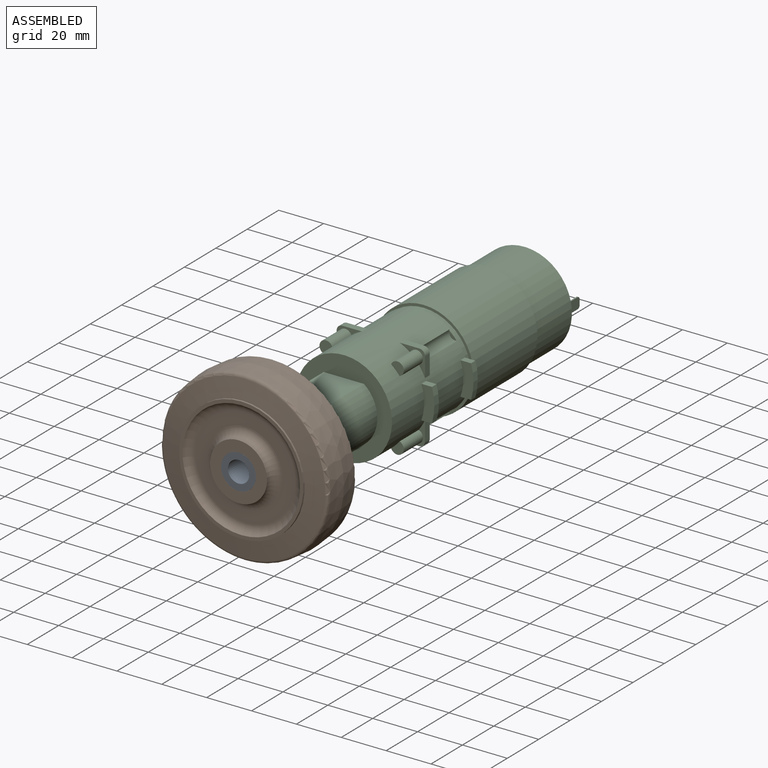
[diagram: assembled view]
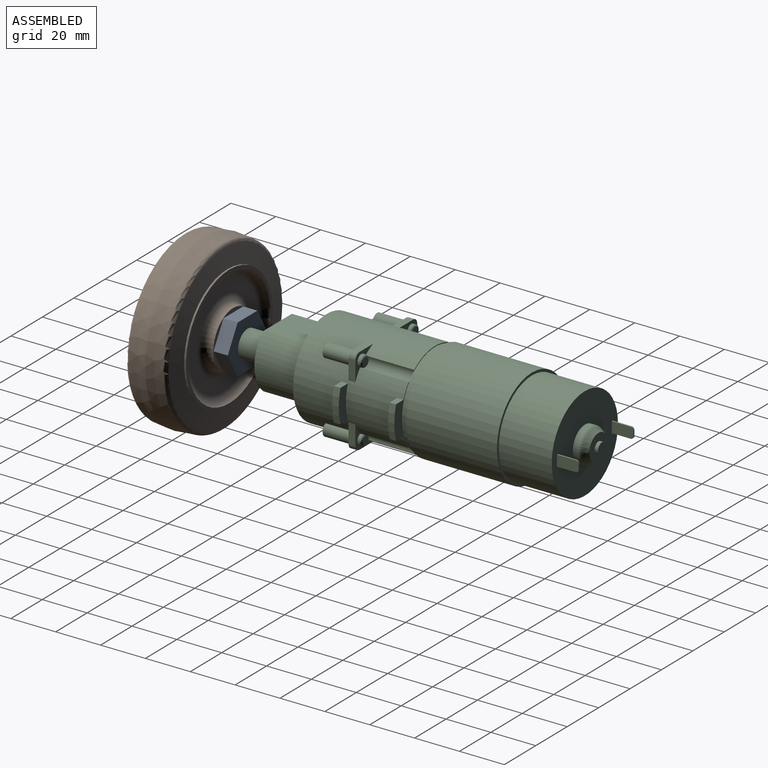
[diagram: assembled view, second angle]
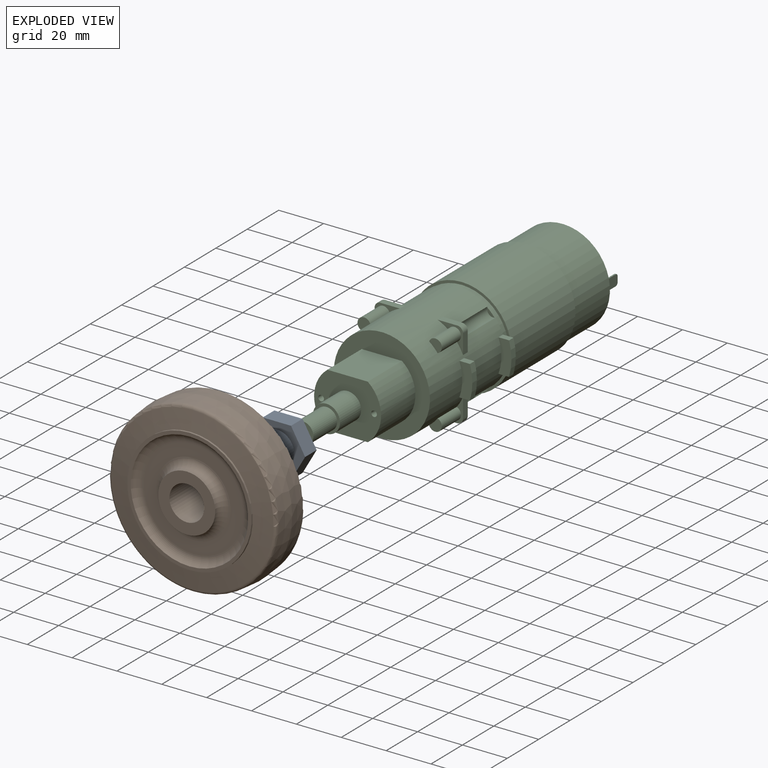
[diagram: exploded view]
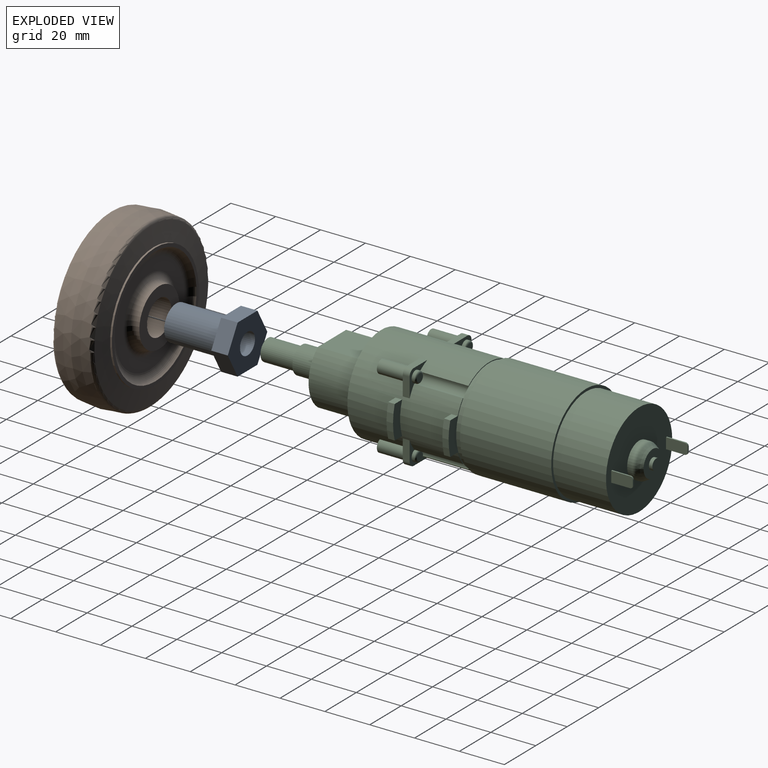
[diagram: exploded view, second angle]
ASSEMBLY  parts=3 mates=2
PART A: 11 faces, bbox 25.2x21.8x31.8 mm
  f0: cylinder r=4.76mm len=31.75mm, axis (0,0,-1), area 950.1mm2, adj f2,f4
  f1: cylinder r=7.74mm len=24.38mm, axis (0,0,-1), area 1185.7mm2, adj f2,f3
  f2: plane 15.48x15.48mm, normal (0,0,1), area 116.9mm2, adj f0,f1
  f3: plane 25.17x21.8mm, normal (0,0,1), area 223.2mm2, adj f1,f5,f6,f7,f8,f9,f10
  f4: plane 25.17x21.8mm, normal (0,0,-1), area 340.2mm2, adj f0,f5,f6,f7,f8,f9,f10
  f5: plane 12.58x7.37mm, normal (0,-1,0), area 92.7mm2, adj f3,f4,f6,f10
  f6: plane 10.9x7.37mm, normal (0.87,-0.5,0), area 92.7mm2, adj f3,f4,f5,f7
  f7: plane 10.9x7.37mm, normal (0.87,0.5,0), area 92.7mm2, adj f3,f4,f6,f8
  f8: plane 12.58x7.37mm, normal (0,1,0), area 92.7mm2, adj f3,f4,f7,f9
  f9: plane 10.9x7.37mm, normal (-0.87,0.5,0), area 92.7mm2, adj f3,f4,f8,f10
  f10: plane 10.9x7.37mm, normal (-0.87,-0.5,0), area 92.7mm2, adj f3,f4,f5,f9
PART B: 21 faces, bbox 81x81x27.6 mm
  f0: cone r=27.69mm half-angle=82.5deg, axis (0,0,-1), area 1702.9mm2, adj f1,f20
  f1: torus R=35.91mm, axis (0,0,1), area 478.3mm2, adj f0,f2
  f2: cone r=37.43mm half-angle=5deg, axis (0,0,-1), area 1827.3mm2, adj f1,f3
  f3: cone r=38.1mm half-angle=5deg, axis (0,0,1), area 1827.3mm2, adj f2,f4
  f4: torus R=35.91mm, axis (0,0,1), area 478.3mm2, adj f3,f5
  f5: cone r=36.11mm half-angle=82.5deg, axis (0,0,1), area 1702.9mm2, adj f4,f6
  f6: cylinder r=27.69mm len=55.37mm, axis (0,0,1), area 141.4mm2, adj f5,f7
  f7: plane 55.37x55.37mm, normal (0,0,-1), area 254.4mm2, adj f6,f8
  f8: torus R=22.23mm, axis (0,0,1), area 769.3mm2, adj f7,f9
  f9: plane 44.45x44.45mm, normal (0,0,-1), area 695.5mm2, adj f8,f10
  f10: torus R=16.51mm, axis (0,0,1), area 529.6mm2, adj f9,f11
  f11: cylinder r=12.7mm len=25.4mm, axis (0,0,1), area 40.5mm2, adj f10,f12
  f12: plane 25.4x25.4mm, normal (0,0,-1), area 318.2mm2, adj f11,f13
  f13: cylinder r=7.75mm len=25.4mm, axis (0,0,1), area 1236.4mm2, adj f12,f14
  f14: plane 25.4x25.4mm, normal (0,0,1), area 318.2mm2, adj f13,f15
  f15: cylinder r=12.7mm len=25.4mm, axis (0,0,1), area 40.5mm2, adj f14,f16
  f16: torus R=16.51mm, axis (0,0,1), area 529.6mm2, adj f15,f17
  f17: plane 44.45x44.45mm, normal (0,0,1), area 695.5mm2, adj f16,f18
  f18: torus R=22.23mm, axis (0,0,1), area 769.3mm2, adj f17,f19
  f19: plane 55.37x55.37mm, normal (0,0,1), area 254.4mm2, adj f18,f20
  f20: cylinder r=27.69mm len=55.37mm, axis (0,0,1), area 141.4mm2, adj f0,f19
PART C: 114 faces, bbox 51.8x175.1x44.1 mm
  f0: plane 42.16x42.16mm, normal (0,1,0), area 1207.7mm2, adj f65,f71,f96,f97,f98,f99,f101,f102
  f1: plane 11.23x11.23mm, normal (0,1,0), area 31.5mm2, adj f7,f30,f31,f32,f82,f90
  f2: plane 11.23x11.23mm, normal (0,1,0), area 31.5mm2, adj f7,f27,f28,f29,f80,f88
  f3: plane 11.23x11.23mm, normal (0,1,0), area 31.5mm2, adj f7,f36,f37,f38,f78,f86
  f4: plane 11.23x11.23mm, normal (0,1,0), area 31.5mm2, adj f7,f33,f34,f35,f76,f84
  f5: plane 26.5x4.94mm, normal (0,1,0), area 9.8mm2, adj f7,f65,f80,f82
  f6: plane 26.5x9.43mm, normal (0,1,0), area 76.9mm2, adj f7,f57,f59,f60,f65,f76,f82
  f7: cylinder r=21.42mm len=48.26mm, axis (0,-1,0), area 5424.3mm2, adj f1,f2,f3,f4,f5,f6,f8,f9
  f8: plane 26.5x9.43mm, normal (0,1,0), area 76.9mm2, adj f7,f62,f63,f64,f65,f78,f80
  f9: plane 26.5x4.94mm, normal (0,1,0), area 9.8mm2, adj f7,f65,f76,f78
  f10: plane 11.72x11.72mm, normal (0,1,0), area 88.6mm2, adj f72,f74
  f11: plane 11.23x11.23mm, normal (0,-1,0), area 25.8mm2, adj f7,f27,f28,f29,f46
  f12: plane 11.23x11.23mm, normal (0,-1,0), area 25.8mm2, adj f7,f33,f34,f35,f44
  f13: plane 11.23x11.23mm, normal (0,-1,0), area 25.8mm2, adj f7,f36,f37,f38,f42
  f14: plane 11.23x11.23mm, normal (0,-1,0), area 25.8mm2, adj f7,f30,f31,f32,f40
  f15: plane 29.92x24.39mm, normal (0,-1,0), area 515.7mm2, adj f16,f17,f18,f19,f20,f111,f113
  f16: cylinder r=6.03mm len=13.46mm, axis (0,-1,0), area 510.3mm2, adj f15,f22
  f17: cylinder r=15.49mm len=24.38mm, axis (0,-1,0), area 613.1mm2, adj f15,f18,f20,f21
  f18: plane 21.84x17.98mm, normal (0,0,-1), area 392.8mm2, adj f15,f17,f19,f21
  f19: cylinder r=15.49mm len=24.38mm, axis (0,-1,0), area 613.1mm2, adj f15,f18,f20,f21
  f20: plane 21.84x17.98mm, normal (0,0,1), area 392.8mm2, adj f15,f17,f19,f21
  f21: plane 42.85x42.85mm, normal (0,-1,0), area 801.9mm2, adj f7,f17,f18,f19,f20
  f22: plane 12.07x12.07mm, normal (0,-1,0), area 43.1mm2, adj f16,f23
  f23: cylinder r=4.76mm len=15.11mm, axis (0,1,0), area 452.2mm2, adj f22,f24
  f24: plane 9.53x9.53mm, normal (0,-1,0), area 54.8mm2, adj f23,f25
  f25: cylinder r=2.29mm len=21.59mm, axis (0,-1,0), area 310.1mm2, adj f24,f26
  f26: plane 4.57x4.57mm, normal (0,-1,0), area 16.4mm2, adj f25
  f27: cylinder r=2.54mm len=3.05mm, axis (0,-1,0), area 12.2mm2, adj f2,f11,f28,f29
  f28: plane 8.69x3.05mm, normal (0,0,-1), area 26.5mm2, adj f2,f7,f11,f27
  f29: plane 8.69x3.05mm, normal (1,0,0), area 26.5mm2, adj f2,f7,f11,f27
  f30: cylinder r=2.54mm len=3.05mm, axis (0,-1,0), area 12.2mm2, adj f1,f14,f31,f32
  f31: plane 8.69x3.05mm, normal (-1,0,0), area 26.5mm2, adj f1,f7,f14,f30
  f32: plane 8.69x3.05mm, normal (0,0,-1), area 26.5mm2, adj f1,f7,f14,f30
  f33: cylinder r=2.54mm len=3.05mm, axis (0,-1,0), area 12.2mm2, adj f4,f12,f34,f35
  f34: plane 8.69x3.05mm, normal (-1,0,0), area 26.5mm2, adj f4,f7,f12,f33
  f35: plane 8.69x3.05mm, normal (0,0,1), area 26.5mm2, adj f4,f7,f12,f33
  f36: plane 8.69x3.05mm, normal (0,0,1), area 26.5mm2, adj f3,f7,f13,f38
  f37: plane 8.69x3.05mm, normal (1,0,0), area 26.5mm2, adj f3,f7,f13,f38
  f38: cylinder r=2.54mm len=3.05mm, axis (0,-1,0), area 12.2mm2, adj f3,f13,f36,f37
  f39: plane 5.65x5.65mm, normal (0,-1,0), area 19.6mm2, adj f7,f40
  f40: cylinder r=2.92mm len=12.19mm, axis (0,1,0), area 141.8mm2, adj f7,f14,f39
  f41: plane 5.65x5.65mm, normal (0,-1,0), area 19.6mm2, adj f7,f42
  f42: cylinder r=2.92mm len=12.19mm, axis (0,1,0), area 141.8mm2, adj f7,f13,f41
  f43: plane 5.65x5.65mm, normal (0,-1,0), area 19.6mm2, adj f7,f44
  f44: cylinder r=2.92mm len=12.19mm, axis (0,1,0), area 141.8mm2, adj f7,f12,f43
  f45: plane 5.65x5.65mm, normal (0,-1,0), area 19.6mm2, adj f7,f46
  f46: cylinder r=2.92mm len=12.19mm, axis (0,1,0), area 141.8mm2, adj f7,f11,f45
  f47: cylinder r=25.91mm len=14.73mm, axis (0,1,0), area 43.6mm2, adj f48,f49,f50,f51
  f48: plane 14.73x5.79mm, normal (0,-1,0), area 67.2mm2, adj f7,f47,f50,f51
  f49: plane 14.73x5.79mm, normal (0,1,0), area 67.2mm2, adj f7,f47,f50,f51
  f50: plane 4.72x2.92mm, normal (0,0,1), area 13.8mm2, adj f7,f47,f48,f49
  f51: plane 4.72x2.92mm, normal (0,0,-1), area 13.8mm2, adj f7,f47,f48,f49
  f52: plane 4.72x2.92mm, normal (0,0,-1), area 13.8mm2, adj f7,f54,f55,f56
  f53: plane 4.72x2.92mm, normal (0,0,1), area 13.8mm2, adj f7,f54,f55,f56
  f54: plane 14.73x5.79mm, normal (0,-1,0), area 67.2mm2, adj f7,f52,f53,f56
  f55: plane 14.73x5.79mm, normal (0,1,0), area 67.2mm2, adj f7,f52,f53,f56
  f56: cylinder r=25.91mm len=14.73mm, axis (0,1,0), area 43.6mm2, adj f52,f53,f54,f55
  f57: cylinder r=25.91mm len=14.73mm, axis (0,1,0), area 41.7mm2, adj f6,f58,f59,f60
  f58: plane 14.73x5.79mm, normal (0,-1,0), area 67.2mm2, adj f7,f57,f59,f60
  f59: plane 4.72x2.79mm, normal (0,0,-1), area 13.2mm2, adj f6,f7,f57,f58
  f60: plane 4.72x2.79mm, normal (0,0,1), area 13.2mm2, adj f6,f7,f57,f58
  f61: plane 14.73x5.79mm, normal (0,-1,0), area 67.2mm2, adj f7,f62,f63,f64
  f62: plane 4.72x2.79mm, normal (0,0,1), area 13.2mm2, adj f7,f8,f61,f64
  f63: plane 4.72x2.79mm, normal (0,0,-1), area 13.2mm2, adj f7,f8,f61,f64
  f64: cylinder r=25.91mm len=14.73mm, axis (0,1,0), area 41.7mm2, adj f8,f61,f62,f63
  f65: cylinder r=21.08mm len=66.8mm, axis (0,-1,0), area 3776.9mm2, adj f0,f5,f6,f8,f9,f66,f67,f68
  f66: plane 40.64x1.16mm, normal (1,0,0), area 47.2mm2, adj f65,f68,f69,f70
  f67: plane 40.64x1.16mm, normal (-1,0,0), area 47.2mm2, adj f65,f68,f69,f70
  f68: plane 44.45x44.12mm, normal (0,1,0), area 146.8mm2, adj f65,f66,f67,f70
  f69: plane 44.45x44.12mm, normal (0,-1,0), area 146.8mm2, adj f65,f66,f67,f70
  f70: cylinder r=22.23mm len=44.45mm, axis (0,-1,0), area 5363.9mm2, adj f66,f67,f68,f69
  f71: cylinder r=7.62mm len=15.24mm, axis (0,-1,0), area 113.3mm2, adj f0,f73
  f72: cone r=5.86mm half-angle=30deg, axis (0,-1,0), area 117.2mm2, adj f10,f73
  f73: torus R=5.08mm, axis (0,1,0), area 62.7mm2, adj f71,f72
  f74: cylinder r=2.48mm len=4.95mm, axis (0,-1,0), area 23.7mm2, adj f10,f75
  f75: plane 4.95x4.95mm, normal (0,1,0), area 19.3mm2, adj f74
  f76: cylinder r=2.79mm len=21.72mm, axis (0,-1,0), area 137.9mm2, adj f4,f6,f7,f9,f77
  f77: plane 3.4x3.4mm, normal (0,-1,0), area 4.7mm2, adj f65,f76
  f78: cylinder r=2.79mm len=21.72mm, axis (0,-1,0), area 137.9mm2, adj f3,f7,f8,f9,f79
  f79: plane 3.4x3.4mm, normal (0,-1,0), area 4.7mm2, adj f65,f78
  f80: cylinder r=2.79mm len=21.72mm, axis (0,-1,0), area 137.9mm2, adj f2,f5,f7,f8,f81
  f81: plane 3.4x3.4mm, normal (0,-1,0), area 4.7mm2, adj f65,f80
  f82: cylinder r=2.79mm len=21.72mm, axis (0,-1,0), area 137.9mm2, adj f1,f5,f6,f7,f83
  f83: plane 3.4x3.4mm, normal (0,-1,0), area 4.7mm2, adj f65,f82
  f84: cylinder r=2.54mm len=5.08mm, axis (0,-1,0), area 18.2mm2, adj f4,f95
  f85: plane 3.56x3.56mm, normal (0,1,0), area 9.9mm2, adj f95
  f86: cylinder r=2.54mm len=5.08mm, axis (0,-1,0), area 18.2mm2, adj f3,f93
  f87: plane 3.56x3.56mm, normal (0,1,0), area 9.9mm2, adj f93
  f88: cylinder r=2.54mm len=5.08mm, axis (0,-1,0), area 18.2mm2, adj f2,f92
  f89: plane 3.56x3.56mm, normal (0,1,0), area 9.9mm2, adj f92
  f90: cylinder r=2.54mm len=5.08mm, axis (0,-1,0), area 18.2mm2, adj f1,f94
  f91: plane 3.56x3.56mm, normal (0,1,0), area 9.9mm2, adj f94
  f92: torus R=1.78mm, axis (0,1,0), area 17mm2, adj f88,f89
  f93: torus R=1.78mm, axis (0,1,0), area 17mm2, adj f86,f87
  f94: torus R=1.78mm, axis (0,1,0), area 17mm2, adj f90,f91
  f95: torus R=1.78mm, axis (0,1,0), area 17mm2, adj f84,f85
  f96: plane 9.65x4.83mm, normal (1,0,0), area 45.9mm2, adj f0,f97,f99,f100,f106,f107
  f97: plane 8.38x0.64mm, normal (0,0,-1), area 5.3mm2, adj f0,f96,f98,f106
  f98: plane 9.65x4.83mm, normal (-1,0,0), area 45.9mm2, adj f0,f97,f99,f100,f106,f107
  f99: plane 8.38x0.64mm, normal (0,0,1), area 5.3mm2, adj f0,f96,f98,f107
  f100: plane 2.29x0.64mm, normal (0,1,0), area 1.5mm2, adj f96,f98,f106,f107
  f101: plane 9.65x4.83mm, normal (1,0,0), area 45.9mm2, adj f0,f102,f104,f105,f108,f109
  f102: plane 8.38x0.64mm, normal (0,0,-1), area 5.3mm2, adj f0,f101,f103,f108
  f103: plane 9.65x4.83mm, normal (-1,0,0), area 45.9mm2, adj f0,f102,f104,f105,f108,f109
  f104: plane 8.38x0.64mm, normal (0,0,1), area 5.3mm2, adj f0,f101,f103,f109
  f105: plane 2.29x0.64mm, normal (0,1,0), area 1.5mm2, adj f101,f103,f108,f109
  f106: cylinder r=1.27mm len=1.27mm, axis (1,0,0), area 1.3mm2, adj f96,f97,f98,f100
  f107: cylinder r=1.27mm len=1.27mm, axis (-1,0,0), area 1.3mm2, adj f96,f98,f99,f100
  f108: cylinder r=1.27mm len=1.27mm, axis (1,0,0), area 1.3mm2, adj f101,f102,f103,f105
  f109: cylinder r=1.27mm len=1.27mm, axis (-1,0,0), area 1.3mm2, adj f101,f103,f104,f105
  f110: plane 2.54x2.54mm, normal (0,-1,0), area 5.1mm2, adj f111
  f111: cylinder r=1.27mm len=18.64mm, axis (0,-1,0), area 148.8mm2, adj f15,f110
  f112: plane 2.54x2.54mm, normal (0,-1,0), area 5.1mm2, adj f113
  f113: cylinder r=1.27mm len=18.64mm, axis (0,-1,0), area 148.8mm2, adj f15,f112
PLACE A rot(axis=(0,0.71,-0.71),180deg) t=(-31.59,-61.86,-6.97)mm
PLACE B rot(axis=(0,-0.71,0.71),180deg) t=(-91.42,-73.55,8.1)mm
PLACE C t=(-91.42,-47.38,8.1)mm
MATE fastened A.f0 <-> B.f0  axis (0,1,0) through (-91.42,-86.25,8.1)mm
MATE revolute A.f0 <-> C.f7  axis (0,1,0) through (-91.42,-54.5,8.1)mm
